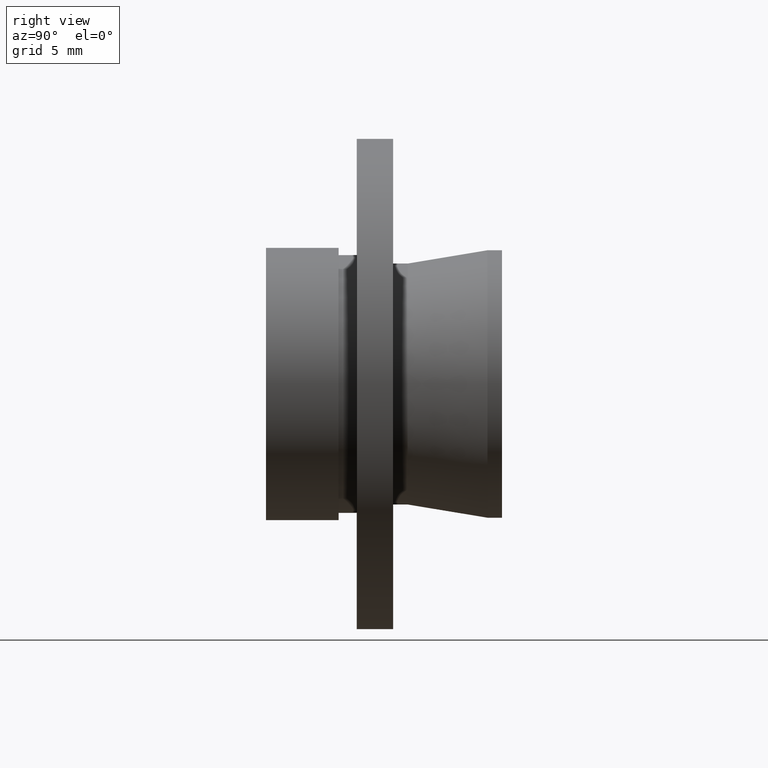
[diagram: clean part render]
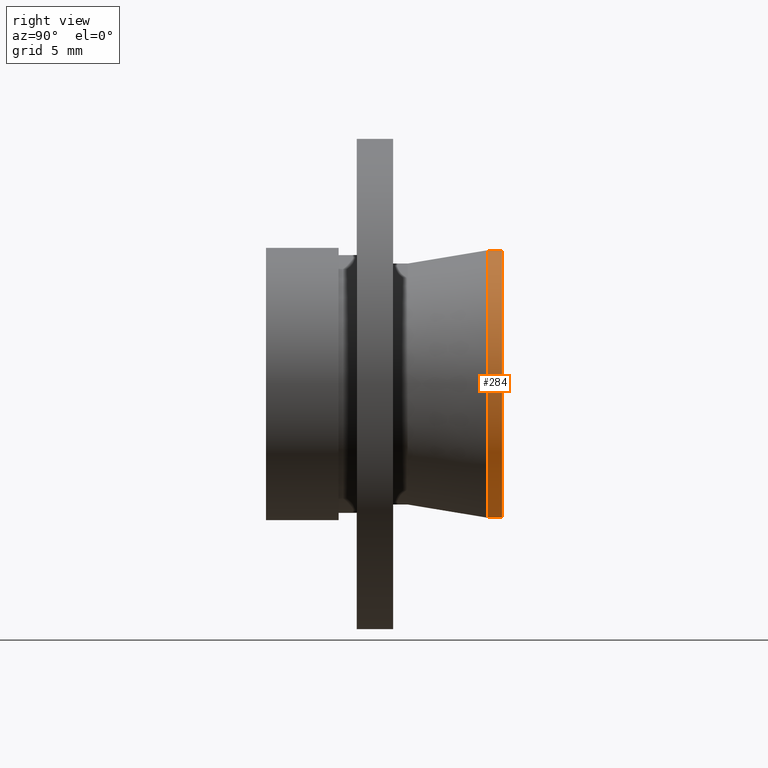
[diagram: same view with one face highlighted and labeled with its STEP entity id]
A machine part, right view. The second image highlights one B-rep face of the part: STEP entity #284.
In plain terms, the highlighted cylindrical surface (partial cylindrical patch) has radius 7.365 mm, axis along (-0, -1, -0).
Its self-contained STEP definition (entity closure, byte-faithful):
#8 = CARTESIAN_POINT ( 'NONE',  ( 9.019523675720257200E-016, 13.00000000000000200, 7.365000000000000200 ) ) ;
#16 = DIRECTION ( 'NONE',  ( -0.0000000000000000000, -1.000000000000000000, -0.0000000000000000000 ) ) ;
#28 = CYLINDRICAL_SURFACE ( 'NONE', #285, 7.365000000000000200 ) ;
#33 = ORIENTED_EDGE ( 'NONE', *, *, #334, .F. ) ;
#36 = FACE_OUTER_BOUND ( 'NONE', #380, .T. ) ;
#50 = VECTOR ( 'NONE', #640, 1000.000000000000000 ) ;
#66 = CARTESIAN_POINT ( 'NONE',  ( 0.0000000000000000000, 12.20000000000000100, 0.0000000000000000000 ) ) ;
#98 = ORIENTED_EDGE ( 'NONE', *, *, #437, .T. ) ;
#102 = CARTESIAN_POINT ( 'NONE',  ( 0.0000000000000000000, 13.00000000000000200, 0.0000000000000000000 ) ) ;
#137 = CARTESIAN_POINT ( 'NONE',  ( 0.0000000000000000000, 0.0000000000000000000, -7.365000000000000200 ) ) ;
#138 = CARTESIAN_POINT ( 'NONE',  ( 0.0000000000000000000, 12.20000000000000100, -7.365000000000001100 ) ) ;
#157 = DIRECTION ( 'NONE',  ( 0.0000000000000000000, 0.0000000000000000000, -1.000000000000000000 ) ) ;
#159 = AXIS2_PLACEMENT_3D ( 'NONE', #102, #460, #157 ) ;
#162 = LINE ( 'NONE', #484, #331 ) ;
#190 = CIRCLE ( 'NONE', #270, 7.365000000000001100 ) ;
#218 = EDGE_CURVE ( 'NONE', #313, #562, #190, .T. ) ;
#270 = AXIS2_PLACEMENT_3D ( 'NONE', #66, #16, #421 ) ;
#271 = CIRCLE ( 'NONE', #159, 7.365000000000000200 ) ;
#284 = ADVANCED_FACE ( 'NONE', ( #36 ), #28, .T. ) ;
#285 = AXIS2_PLACEMENT_3D ( 'NONE', #362, #477, #379 ) ;
#287 = DIRECTION ( 'NONE',  ( -0.0000000000000000000, -1.000000000000000000, -0.0000000000000000000 ) ) ;
#313 = VERTEX_POINT ( 'NONE', #138 ) ;
#331 = VECTOR ( 'NONE', #287, 1000.000000000000000 ) ;
#334 = EDGE_CURVE ( 'NONE', #522, #313, #417, .T. ) ;
#362 = CARTESIAN_POINT ( 'NONE',  ( 0.0000000000000000000, 0.0000000000000000000, 0.0000000000000000000 ) ) ;
#379 = DIRECTION ( 'NONE',  ( 0.0000000000000000000, 0.0000000000000000000, -1.000000000000000000 ) ) ;
#380 = EDGE_LOOP ( 'NONE', ( #558, #98, #661, #33 ) ) ;
#417 = LINE ( 'NONE', #137, #50 ) ;
#421 = DIRECTION ( 'NONE',  ( 0.0000000000000000000, 0.0000000000000000000, -1.000000000000000000 ) ) ;
#437 = EDGE_CURVE ( 'NONE', #600, #562, #162, .T. ) ;
#451 = CARTESIAN_POINT ( 'NONE',  ( 0.0000000000000000000, 13.00000000000000200, -7.365000000000000200 ) ) ;
#460 = DIRECTION ( 'NONE',  ( -0.0000000000000000000, -1.000000000000000000, -0.0000000000000000000 ) ) ;
#477 = DIRECTION ( 'NONE',  ( -0.0000000000000000000, -1.000000000000000000, -0.0000000000000000000 ) ) ;
#484 = CARTESIAN_POINT ( 'NONE',  ( 9.019523675720257200E-016, 0.0000000000000000000, 7.365000000000000200 ) ) ;
#505 = CARTESIAN_POINT ( 'NONE',  ( 9.019523675720259200E-016, 12.20000000000000100, 7.365000000000002000 ) ) ;
#522 = VERTEX_POINT ( 'NONE', #451 ) ;
#558 = ORIENTED_EDGE ( 'NONE', *, *, #614, .T. ) ;
#562 = VERTEX_POINT ( 'NONE', #505 ) ;
#600 = VERTEX_POINT ( 'NONE', #8 ) ;
#614 = EDGE_CURVE ( 'NONE', #522, #600, #271, .T. ) ;
#640 = DIRECTION ( 'NONE',  ( -0.0000000000000000000, -1.000000000000000000, -0.0000000000000000000 ) ) ;
#661 = ORIENTED_EDGE ( 'NONE', *, *, #218, .F. ) ;